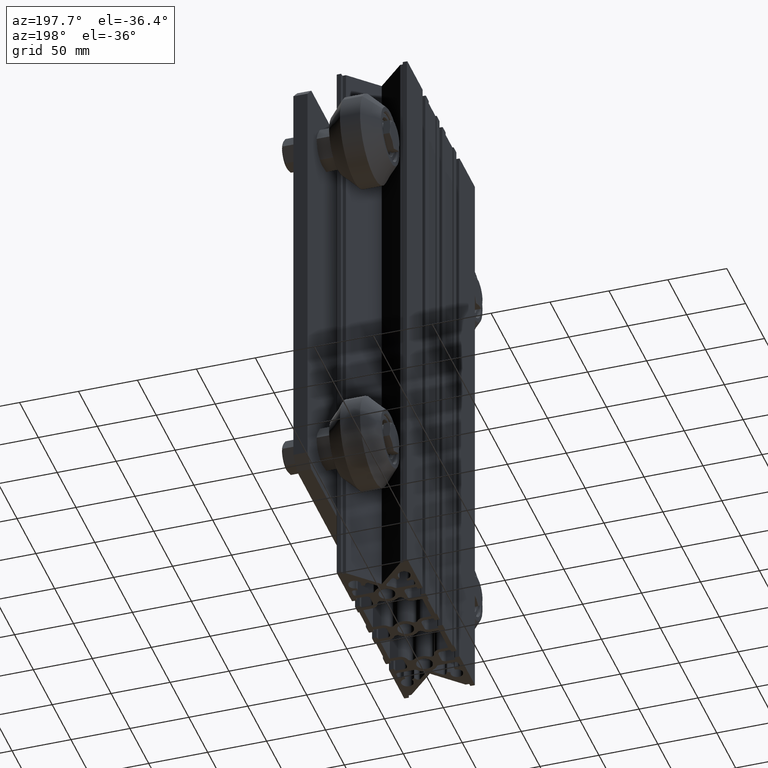
[diagram: clean part render]
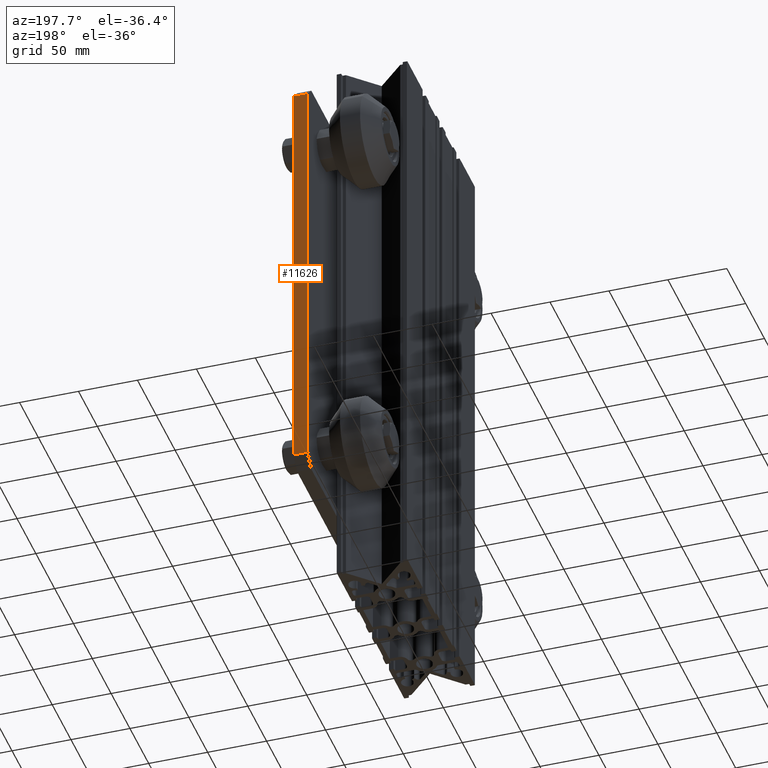
[diagram: same view with one face highlighted and labeled with its STEP entity id]
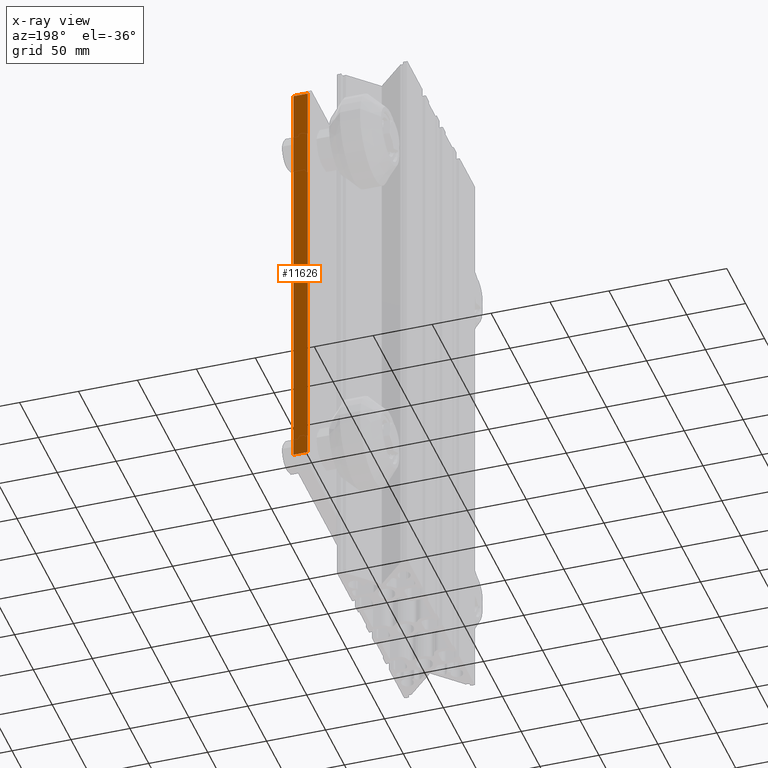
[diagram: x-ray of the same camera — body ghosted, the highlighted face saturated]
A machine part, auxiliary view. The second image highlights one B-rep face of the part: STEP entity #11626.
The next image is the same camera in x-ray: the body ghosted, the highlighted face saturated — about 0% of this face is hidden behind the body in this view.
In plain terms, the highlighted planar face has unit normal (0, 1, 0).
Its self-contained STEP definition (entity closure, byte-faithful):
#885=PLANE('',#13160);
#1482=FACE_OUTER_BOUND('',#2139,.T.);
#2139=EDGE_LOOP('',(#10806,#10807,#10808,#10809));
#3007=LINE('',#21143,#3879);
#3008=LINE('',#21146,#3880);
#3009=LINE('',#21148,#3881);
#3010=LINE('',#21149,#3882);
#3879=VECTOR('',#16492,10.);
#3880=VECTOR('',#16495,10.);
#3881=VECTOR('',#16496,10.);
#3882=VECTOR('',#16497,10.);
#5657=VERTEX_POINT('',#21136);
#5660=VERTEX_POINT('',#21141);
#5661=VERTEX_POINT('',#21145);
#5662=VERTEX_POINT('',#21147);
#7379=EDGE_CURVE('',#5660,#5657,#3007,.T.);
#7380=EDGE_CURVE('',#5661,#5660,#3008,.T.);
#7381=EDGE_CURVE('',#5662,#5661,#3009,.T.);
#7382=EDGE_CURVE('',#5657,#5662,#3010,.T.);
#10806=ORIENTED_EDGE('',*,*,#7379,.F.);
#10807=ORIENTED_EDGE('',*,*,#7380,.F.);
#10808=ORIENTED_EDGE('',*,*,#7381,.F.);
#10809=ORIENTED_EDGE('',*,*,#7382,.F.);
#11626=ADVANCED_FACE('',(#1482),#885,.T.);
#13160=AXIS2_PLACEMENT_3D('',#21144,#16493,#16494);
#16492=DIRECTION('',(0.,0.,1.));
#16493=DIRECTION('center_axis',(-1.,0.,0.));
#16494=DIRECTION('ref_axis',(0.,-1.,0.));
#16495=DIRECTION('',(0.,1.,0.));
#16496=DIRECTION('',(0.,0.,-1.));
#16497=DIRECTION('',(0.,-1.,0.));
#21136=CARTESIAN_POINT('',(-150.,180.,12.));
#21141=CARTESIAN_POINT('',(-150.,180.,0.));
#21143=CARTESIAN_POINT('',(-150.,180.,0.));
#21144=CARTESIAN_POINT('Origin',(-150.,190.,0.));
#21145=CARTESIAN_POINT('',(-150.,-180.,0.));
#21146=CARTESIAN_POINT('',(-150.,-190.,0.));
#21147=CARTESIAN_POINT('',(-150.,-180.,12.));
#21148=CARTESIAN_POINT('',(-150.,-180.,0.));
#21149=CARTESIAN_POINT('',(-150.,-190.,12.));